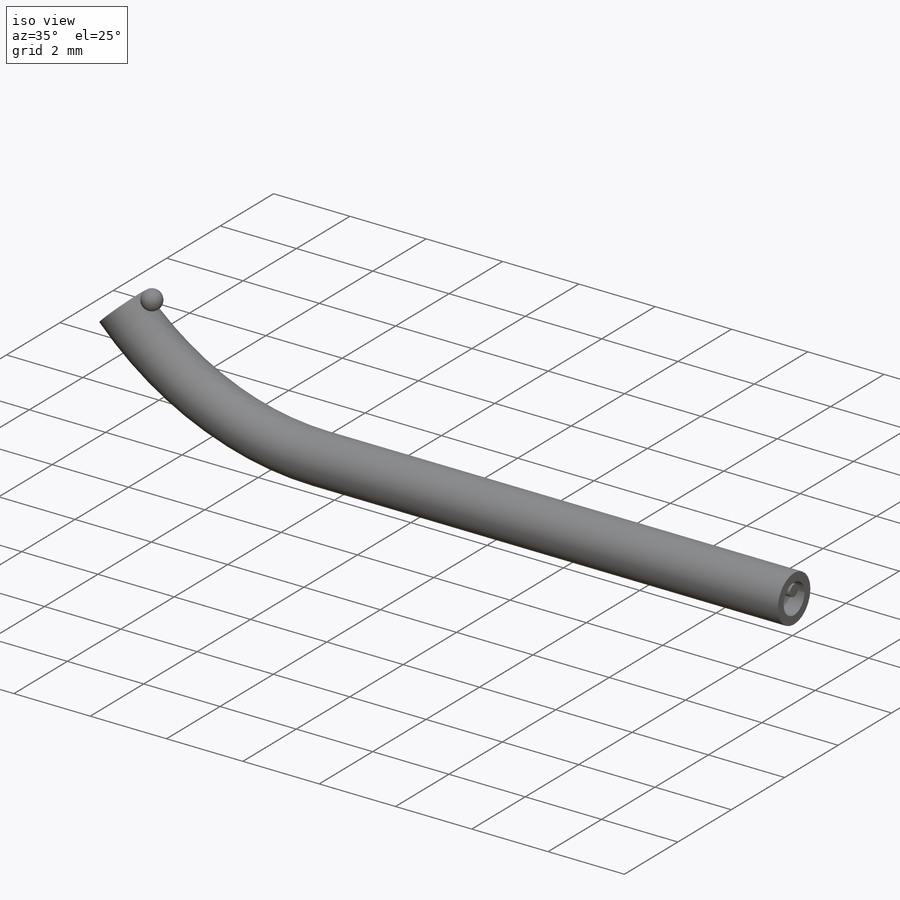
[diagram: iso view]
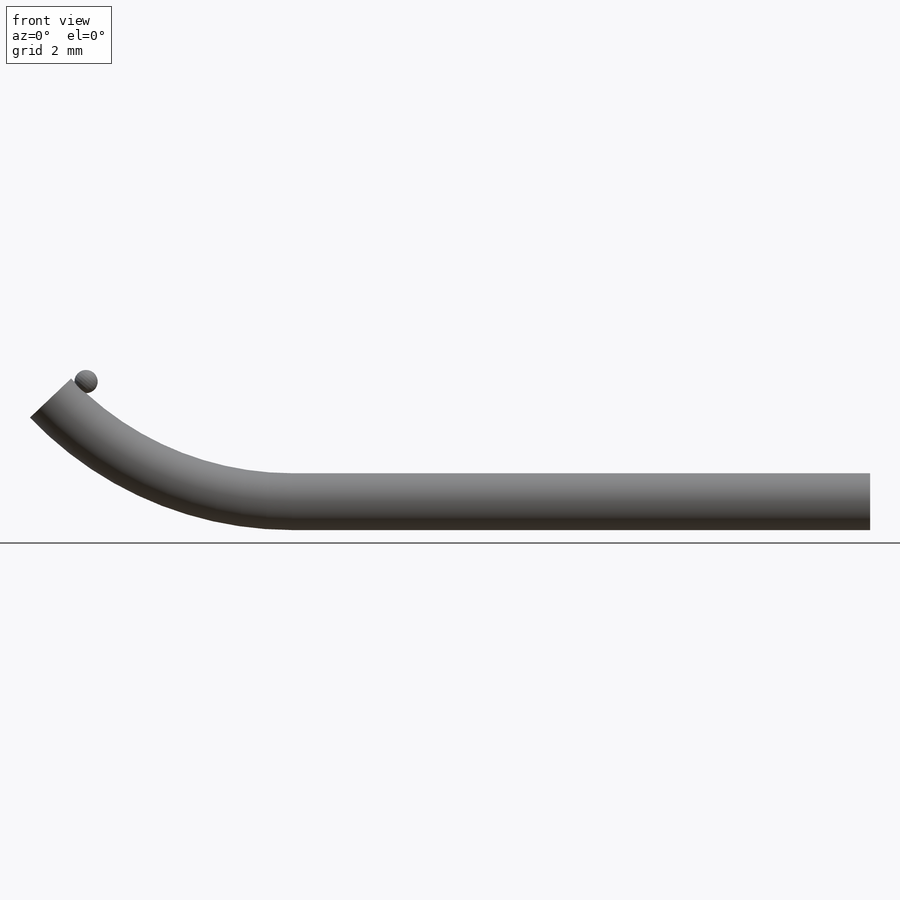
[diagram: front view]
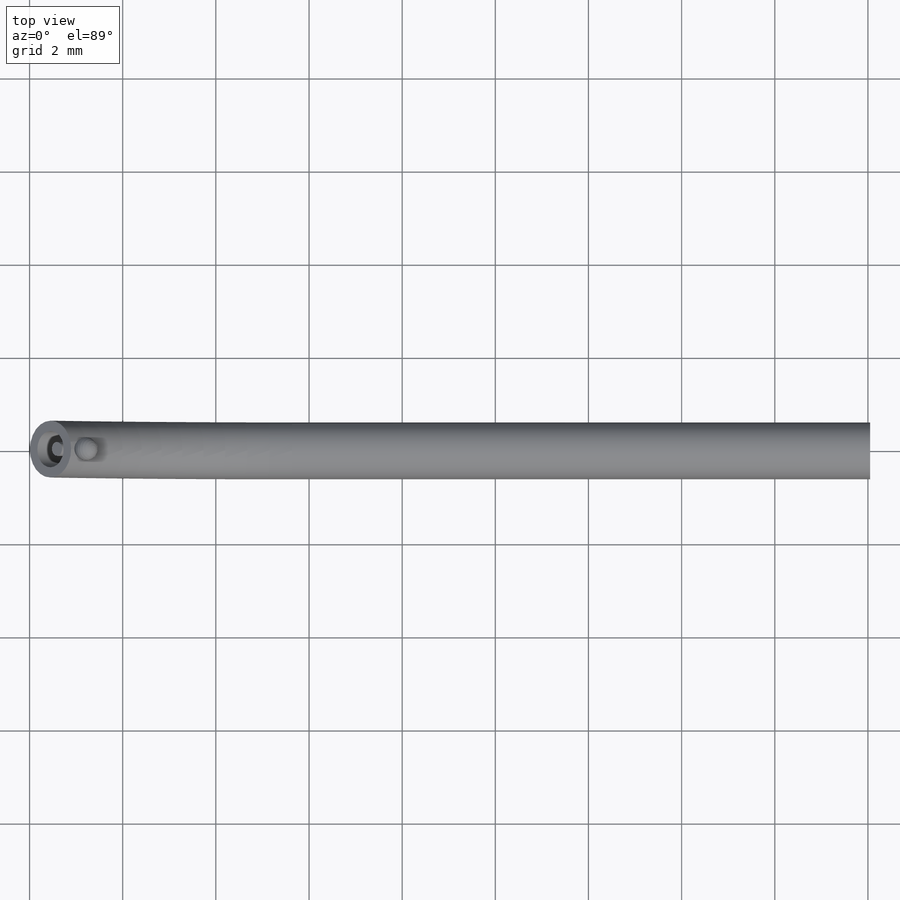
[diagram: top view]
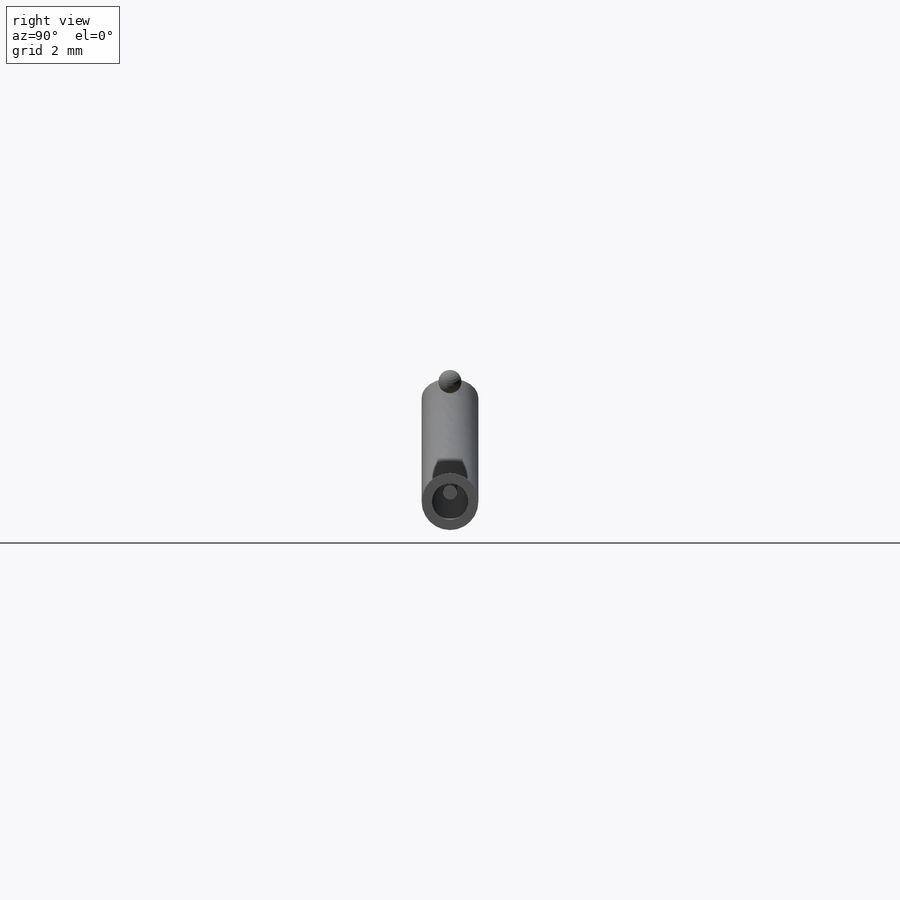
[diagram: right view]
SOLIDWORKS PART (.sldprt)
format: sldprt  version: not decoded by parser v0  size: 1,294,336 bytes
history: native  units: mm
features: sketch x7, extrude x2, sweep x2, material x1, plane x1, revolve x1 (+13 scaffold rows collapsed)
feature tree (27):
  scaffold x13  (default folders/planes/origin — collapsed)
  material  "Material <not specified>"
  sketch  "Sketch4"  dims[c1.D1=~92.683214mm c1.D2=~92.683214mm c2.D1=~5.889916mm]
  sketch  "Sketch1"  dims[D1=1.22mm D2=0.22mm]
  extrude  "Boss-Extrude1"  Depth=10mm
  plane  "Plane1"
  sketch  "Sketch5"  dims[D1=1.22mm D2=0.22mm]
  sweep  "Sweep2"
  extrude  "Boss-Extrude2"  [1 undecoded]
  sketch  "Sketch5<2>"  dims[D1=10.0mm]
  sketch  "Sketch6"  dims[D1=0.5mm D2=0.5mm]
  revolve  "Revolve2"  Angle=360deg
  sketch  "Sketch7"  dims[D1=0.8mm]
  sketch  "Sketch8"  dims[D1=0.3mm]
  sweep  "Sweep3"
decode coverage: 9 of 12 modeling features carry decoded parameters
note: ~ marks probable driven/reference dimensions
note: 1 parameter value undecoded
note: suppression state not decoded; provenance and decode notes live in map.json
